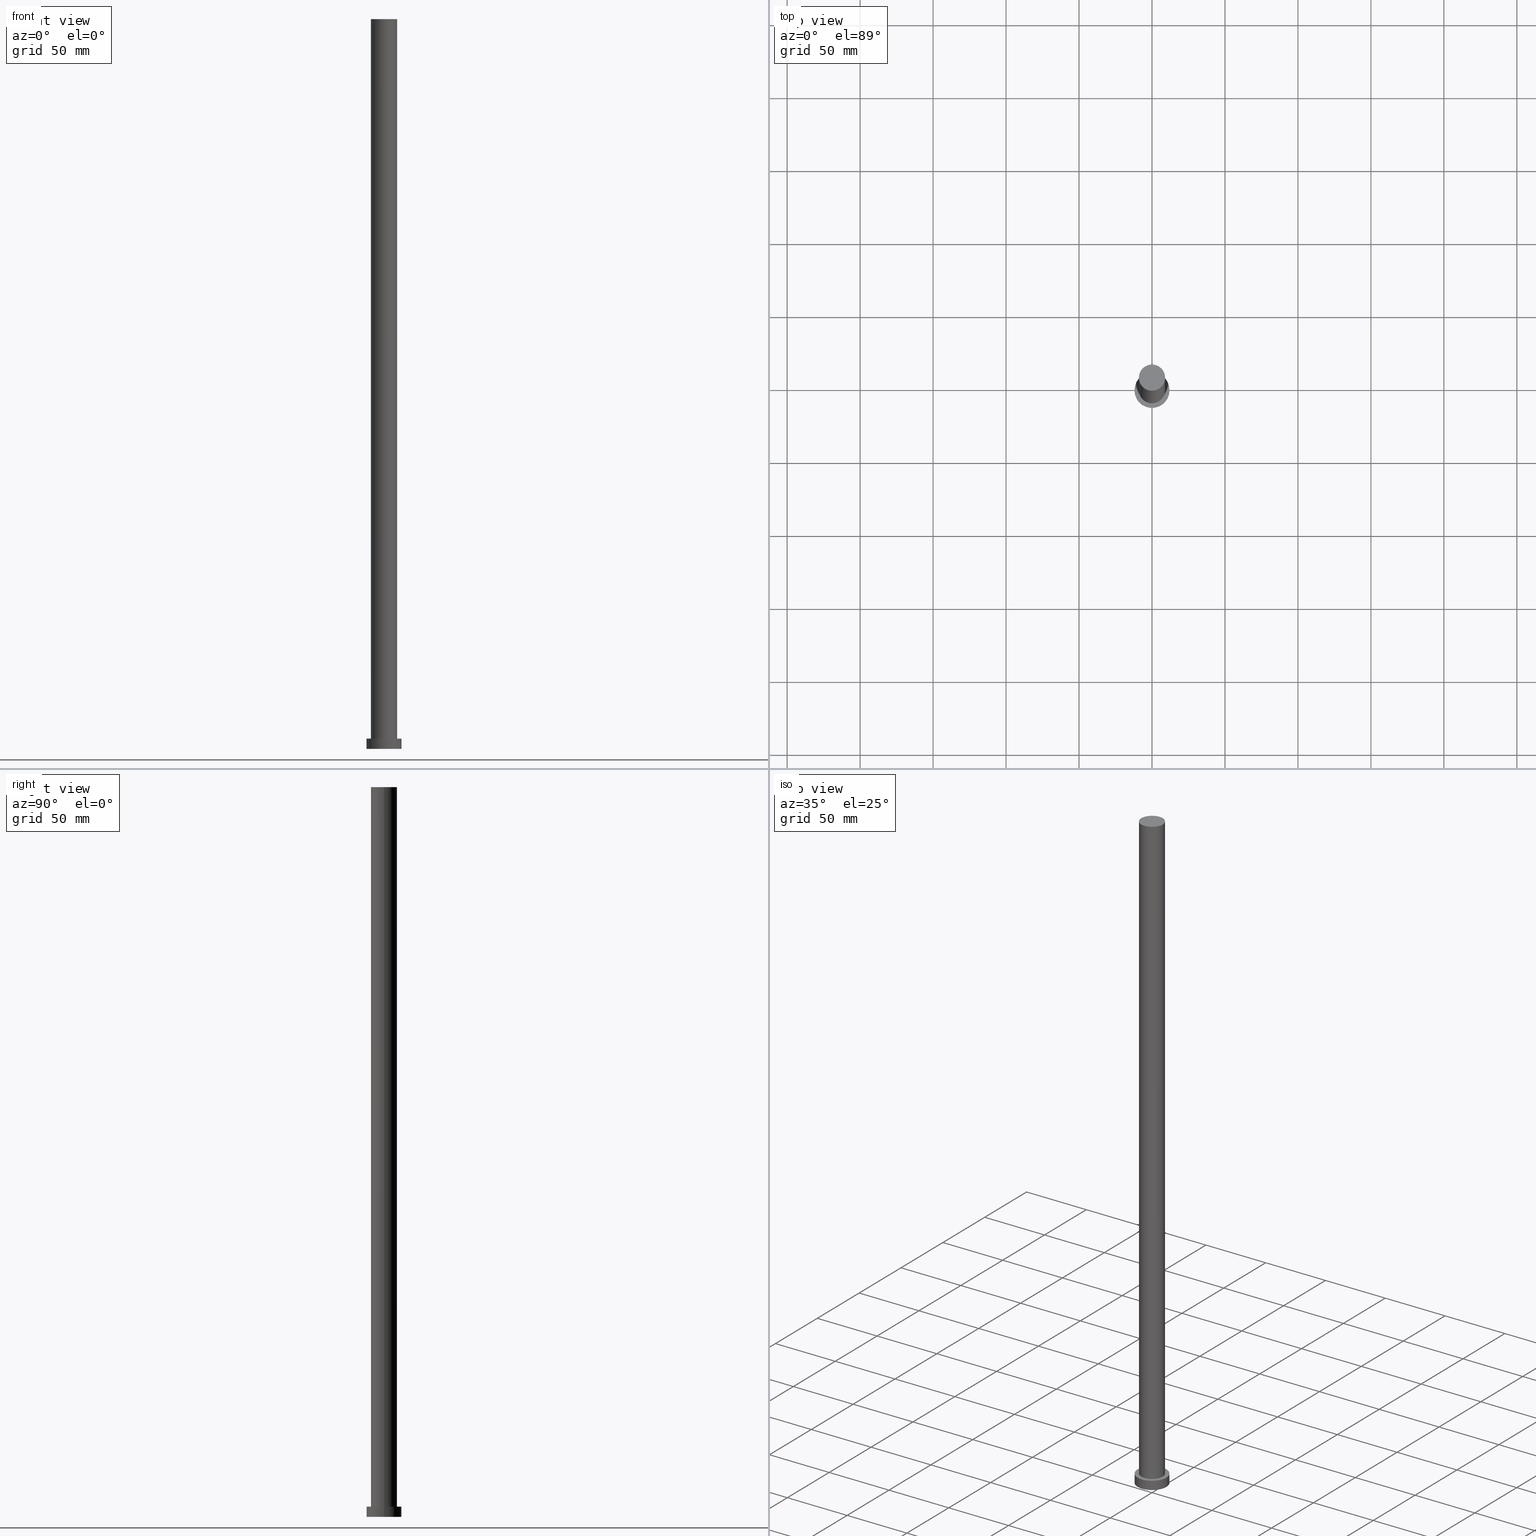
[diagram: canonical four-view strip — front | top / right | iso, engineering-drawing reading convention]
A machine part, canonical four-view strip (front | top / right | iso — engineering-drawing reading convention). The complete STEP part file that produces these views, byte-faithful:
ISO-10303-21;
HEADER;
FILE_DESCRIPTION (( 'STEP AP203' ),
    '1' );
FILE_NAME ('16a3.STEP',
    '2023-02-13T08:45:07',
    ( '' ),
    ( '' ),
    'SwSTEP 2.0',
    'SolidWorks 2019',
    '' );
FILE_SCHEMA (( 'CONFIG_CONTROL_DESIGN' ));
ENDSEC;

DATA;
#1 = DIRECTION ( 'NONE',  ( 1.000000000000000000, 0.000000000000000000, 0.000000000000000000 ) ) ;
#2 = PERSON_AND_ORGANIZATION_ROLE ( 'design_owner' ) ;
#3 = PERSON_AND_ORGANIZATION ( #101, #18 ) ;
#4 = AXIS2_PLACEMENT_3D ( 'NONE', #131, #29, #252 ) ;
#5 = VERTEX_POINT ( 'NONE', #158 ) ;
#6 =( GEOMETRIC_REPRESENTATION_CONTEXT ( 3 ) GLOBAL_UNCERTAINTY_ASSIGNED_CONTEXT ( ( #142 ) ) GLOBAL_UNIT_ASSIGNED_CONTEXT ( ( #20, #102, #136 ) ) REPRESENTATION_CONTEXT ( 'NONE', 'WORKASPACE' ) );
#7 = CC_DESIGN_APPROVAL ( #127, ( #43 ) ) ;
#8 = ORIENTED_EDGE ( 'NONE', *, *, #128, .T. ) ;
#9 = ORIENTED_EDGE ( 'NONE', *, *, #54, .F. ) ;
#10 = CC_DESIGN_APPROVAL ( #162, ( #253 ) ) ;
#11 = CYLINDRICAL_SURFACE ( 'NONE', #110, 12.00000000000000178 ) ;
#12 = EDGE_CURVE ( 'NONE', #64, #225, #224, .T. ) ;
#13 = FACE_OUTER_BOUND ( 'NONE', #164, .T. ) ;
#14 = DIRECTION ( 'NONE',  ( 1.000000000000000000, 0.000000000000000000, 0.000000000000000000 ) ) ;
#15 = DIRECTION ( 'NONE',  ( -0.000000000000000000, -0.000000000000000000, -1.000000000000000000 ) ) ;
#16 = CARTESIAN_POINT ( 'NONE',  ( 0.000000000000000000, 0.000000000000000000, 0.000000000000000000 ) ) ;
#17 = PERSON_AND_ORGANIZATION ( #101, #18 ) ;
#18 = ORGANIZATION ( 'NEUR�EN�', 'NEUR�EN�', '' ) ;
#19 = AXIS2_PLACEMENT_3D ( 'NONE', #242, #59, #196 ) ;
#20 =( LENGTH_UNIT ( ) NAMED_UNIT ( * ) SI_UNIT ( .MILLI., .METRE. ) );
#21 = ADVANCED_FACE ( 'NONE', ( #213 ), #74, .F. ) ;
#22 = CARTESIAN_POINT ( 'NONE',  ( 12.00000000000000178, 1.469576158976824144E-15, 7.000000000000000000 ) ) ;
#23 = CARTESIAN_POINT ( 'NONE',  ( 0.000000000000000000, 0.000000000000000000, 500.0000000000000000 ) ) ;
#24 = VERTEX_POINT ( 'NONE', #236 ) ;
#25 = ORIENTED_EDGE ( 'NONE', *, *, #111, .F. ) ;
#26 = SHAPE_DEFINITION_REPRESENTATION ( #186, #216 ) ;
#27 = PERSON_AND_ORGANIZATION ( #101, #18 ) ;
#28 = ORIENTED_EDGE ( 'NONE', *, *, #152, .F. ) ;
#29 = DIRECTION ( 'NONE',  ( 0.000000000000000000, 0.000000000000000000, 1.000000000000000000 ) ) ;
#30 = VECTOR ( 'NONE', #55, 1000.000000000000000 ) ;
#31 = DIRECTION ( 'NONE',  ( -0.000000000000000000, -0.000000000000000000, -1.000000000000000000 ) ) ;
#32 = ADVANCED_FACE ( 'NONE', ( #91 ), #92, .T. ) ;
#33 = CYLINDRICAL_SURFACE ( 'NONE', #90, 12.00000000000000178 ) ;
#34 = DIRECTION ( 'NONE',  ( -0.000000000000000000, -0.000000000000000000, -1.000000000000000000 ) ) ;
#35 = AXIS2_PLACEMENT_3D ( 'NONE', #214, #211, #167 ) ;
#36 = APPLICATION_PROTOCOL_DEFINITION ( 'international standard', 'config_control_design', 1994, #204 ) ;
#37 = CC_DESIGN_PERSON_AND_ORGANIZATION_ASSIGNMENT ( #103, #222, ( #253 ) ) ;
#38 = APPROVAL_PERSON_ORGANIZATION ( #3, #47, #56 ) ;
#39 = APPROVAL_PERSON_ORGANIZATION ( #137, #127, #87 ) ;
#40 = PERSON_AND_ORGANIZATION ( #101, #18 ) ;
#41 = APPROVAL_STATUS ( 'not_yet_approved' ) ;
#42 = PERSON_AND_ORGANIZATION_ROLE ( 'creator' ) ;
#43 = SECURITY_CLASSIFICATION ( '', '', #67 ) ;
#44 = EDGE_LOOP ( 'NONE', ( #247, #88 ) ) ;
#45 = PRODUCT_DEFINITION ( 'NEZN�M�', '', #253, #251 ) ;
#46 = DIRECTION ( 'NONE',  ( 0.000000000000000000, 0.000000000000000000, 1.000000000000000000 ) ) ;
#47 = APPROVAL ( #41, 'NEUR�EN�' ) ;
#48 = EDGE_CURVE ( 'NONE', #225, #64, #238, .T. ) ;
#49 = FACE_OUTER_BOUND ( 'NONE', #61, .T. ) ;
#50 = APPLICATION_CONTEXT ( 'configuration controlled 3d designs of mechanical parts and assemblies' ) ;
#51 = DIRECTION ( 'NONE',  ( 0.000000000000000000, 0.000000000000000000, 1.000000000000000000 ) ) ;
#52 = DIRECTION ( 'NONE',  ( 0.000000000000000000, 0.000000000000000000, 1.000000000000000000 ) ) ;
#53 = DIRECTION ( 'NONE',  ( 1.000000000000000000, 0.000000000000000000, 0.000000000000000000 ) ) ;
#54 = EDGE_CURVE ( 'NONE', #24, #202, #180, .T. ) ;
#55 = DIRECTION ( 'NONE',  ( -0.000000000000000000, -0.000000000000000000, -1.000000000000000000 ) ) ;
#56 = APPROVAL_ROLE ( '' ) ;
#57 = APPROVAL_PERSON_ORGANIZATION ( #239, #162, #154 ) ;
#58 = CALENDAR_DATE ( 2023, 13, 2 ) ;
#59 = DIRECTION ( 'NONE',  ( 0.000000000000000000, 0.000000000000000000, 1.000000000000000000 ) ) ;
#60 = APPROVAL_DATE_TIME ( #85, #162 ) ;
#61 = EDGE_LOOP ( 'NONE', ( #25, #9, #141, #245 ) ) ;
#62 = CC_DESIGN_PERSON_AND_ORGANIZATION_ASSIGNMENT ( #63, #140, ( #253 ) ) ;
#63 = PERSON_AND_ORGANIZATION ( #101, #18 ) ;
#64 = VERTEX_POINT ( 'NONE', #129 ) ;
#65 = DATE_TIME_ROLE ( 'classification_date' ) ;
#66 = ORIENTED_EDGE ( 'NONE', *, *, #229, .F. ) ;
#67 = SECURITY_CLASSIFICATION_LEVEL ( 'unclassified' ) ;
#68 = CARTESIAN_POINT ( 'NONE',  ( 0.000000000000000000, 0.000000000000000000, 7.000000000000000000 ) ) ;
#69 = LOCAL_TIME ( 9, 45, 7.000000000000000000, #240 ) ;
#70 = CARTESIAN_POINT ( 'NONE',  ( 0.000000000000000000, 0.000000000000000000, 7.000000000000000000 ) ) ;
#71 = CARTESIAN_POINT ( 'NONE',  ( 0.000000000000000000, 0.000000000000000000, 7.000000000000000000 ) ) ;
#72 = CC_DESIGN_APPROVAL ( #47, ( #45 ) ) ;
#73 = ORIENTED_EDGE ( 'NONE', *, *, #178, .F. ) ;
#74 = PLANE ( 'NONE',  #241 ) ;
#75 = AXIS2_PLACEMENT_3D ( 'NONE', #172, #170, #1 ) ;
#76 = PLANE ( 'NONE',  #159 ) ;
#77 = MECHANICAL_CONTEXT ( 'NONE', #50, 'mechanical' ) ;
#78 = APPROVAL_STATUS ( 'not_yet_approved' ) ;
#79 = LOCAL_TIME ( 9, 45, 7.000000000000000000, #181 ) ;
#80 = CARTESIAN_POINT ( 'NONE',  ( -9.000000000000001776, 0.000000000000000000, 500.0000000000000000 ) ) ;
#81 = PRODUCT_RELATED_PRODUCT_CATEGORY ( 'detail', '', ( #203 ) ) ;
#82 = PERSON_AND_ORGANIZATION_ROLE ( 'classification_officer' ) ;
#83 = ORIENTED_EDGE ( 'NONE', *, *, #223, .T. ) ;
#84 = CC_DESIGN_PERSON_AND_ORGANIZATION_ASSIGNMENT ( #17, #42, ( #45 ) ) ;
#85 = DATE_AND_TIME ( #58, #69 ) ;
#86 = ORIENTED_EDGE ( 'NONE', *, *, #157, .T. ) ;
#87 = APPROVAL_ROLE ( '' ) ;
#88 = ORIENTED_EDGE ( 'NONE', *, *, #128, .F. ) ;
#89 = AXIS2_PLACEMENT_3D ( 'NONE', #70, #194, #144 ) ;
#90 = AXIS2_PLACEMENT_3D ( 'NONE', #190, #96, #147 ) ;
#91 = FACE_OUTER_BOUND ( 'NONE', #208, .T. ) ;
#92 = PLANE ( 'NONE',  #4 ) ;
#93 = ORIENTED_EDGE ( 'NONE', *, *, #152, .T. ) ;
#94 = CARTESIAN_POINT ( 'NONE',  ( 0.000000000000000000, 0.000000000000000000, 7.000000000000000000 ) ) ;
#95 = FACE_OUTER_BOUND ( 'NONE', #165, .T. ) ;
#96 = DIRECTION ( 'NONE',  ( -0.000000000000000000, -0.000000000000000000, -1.000000000000000000 ) ) ;
#97 = ADVANCED_FACE ( 'NONE', ( #113 ), #33, .T. ) ;
#98 = CARTESIAN_POINT ( 'NONE',  ( -9.000000000000001776, 0.000000000000000000, 7.000000000000000000 ) ) ;
#99 = CIRCLE ( 'NONE', #197, 12.00000000000000178 ) ;
#100 = CC_DESIGN_DATE_AND_TIME_ASSIGNMENT ( #226, #65, ( #43 ) ) ;
#101 = PERSON ( 'NEUR�EN�', 'NEUR�EN�', 'NEUR�EN�', ('NEUR�EN�'), ('NEUR�EN�'), ('NEUR�EN�') ) ;
#102 =( NAMED_UNIT ( * ) PLANE_ANGLE_UNIT ( ) SI_UNIT ( $, .RADIAN. ) );
#103 = PERSON_AND_ORGANIZATION ( #101, #18 ) ;
#104 = ORIENTED_EDGE ( 'NONE', *, *, #54, .T. ) ;
#105 = CC_DESIGN_DATE_AND_TIME_ASSIGNMENT ( #220, #150, ( #45 ) ) ;
#106 = ORIENTED_EDGE ( 'NONE', *, *, #223, .F. ) ;
#107 = LOCAL_TIME ( 9, 45, 7.000000000000000000, #173 ) ;
#108 = COORDINATED_UNIVERSAL_TIME_OFFSET ( 1, 0, .AHEAD. ) ;
#109 = CLOSED_SHELL ( 'NONE', ( #174, #124, #97, #163, #21, #206, #32 ) ) ;
#110 = AXIS2_PLACEMENT_3D ( 'NONE', #94, #234, #114 ) ;
#111 = EDGE_CURVE ( 'NONE', #202, #64, #191, .T. ) ;
#112 = ORIENTED_EDGE ( 'NONE', *, *, #178, .T. ) ;
#113 = FACE_OUTER_BOUND ( 'NONE', #134, .T. ) ;
#114 = DIRECTION ( 'NONE',  ( -1.000000000000000000, 0.000000000000000000, 0.000000000000000000 ) ) ;
#115 = EDGE_CURVE ( 'NONE', #5, #143, #125, .T. ) ;
#116 = CARTESIAN_POINT ( 'NONE',  ( 9.000000000000001776, 1.102182119232617911E-15, 500.0000000000000000 ) ) ;
#117 = LINE ( 'NONE', #193, #151 ) ;
#118 = DIRECTION ( 'NONE',  ( 1.000000000000000000, 0.000000000000000000, 0.000000000000000000 ) ) ;
#119 = DIRECTION ( 'NONE',  ( -1.000000000000000000, 0.000000000000000000, 0.000000000000000000 ) ) ;
#120 = CYLINDRICAL_SURFACE ( 'NONE', #138, 9.000000000000001776 ) ;
#121 = CC_DESIGN_PERSON_AND_ORGANIZATION_ASSIGNMENT ( #27, #82, ( #43 ) ) ;
#122 = CARTESIAN_POINT ( 'NONE',  ( 0.000000000000000000, 0.000000000000000000, 500.0000000000000000 ) ) ;
#123 = APPROVAL_STATUS ( 'not_yet_approved' ) ;
#124 = ADVANCED_FACE ( 'NONE', ( #95 ), #11, .T. ) ;
#125 = CIRCLE ( 'NONE', #139, 12.00000000000000178 ) ;
#126 = EDGE_LOOP ( 'NONE', ( #187, #169 ) ) ;
#127 = APPROVAL ( #123, 'NEUR�EN�' ) ;
#128 = EDGE_CURVE ( 'NONE', #143, #5, #212, .T. ) ;
#129 = CARTESIAN_POINT ( 'NONE',  ( 9.000000000000001776, 1.102182119232617911E-15, 7.000000000000000000 ) ) ;
#130 = DIRECTION ( 'NONE',  ( 0.000000000000000000, 0.000000000000000000, 1.000000000000000000 ) ) ;
#131 = CARTESIAN_POINT ( 'NONE',  ( 0.000000000000000000, 0.000000000000000000, 500.0000000000000000 ) ) ;
#132 = CIRCLE ( 'NONE', #89, 12.00000000000000178 ) ;
#133 = COORDINATED_UNIVERSAL_TIME_OFFSET ( 1, 0, .AHEAD. ) ;
#134 = EDGE_LOOP ( 'NONE', ( #66, #73, #93, #243 ) ) ;
#135 = CALENDAR_DATE ( 2023, 13, 2 ) ;
#136 =( NAMED_UNIT ( * ) SI_UNIT ( $, .STERADIAN. ) SOLID_ANGLE_UNIT ( ) );
#137 = PERSON_AND_ORGANIZATION ( #101, #18 ) ;
#138 = AXIS2_PLACEMENT_3D ( 'NONE', #23, #176, #119 ) ;
#139 = AXIS2_PLACEMENT_3D ( 'NONE', #149, #51, #14 ) ;
#140 = PERSON_AND_ORGANIZATION_ROLE ( 'design_supplier' ) ;
#141 = ORIENTED_EDGE ( 'NONE', *, *, #250, .T. ) ;
#142 = UNCERTAINTY_MEASURE_WITH_UNIT (LENGTH_MEASURE( 1.000000000000000082E-05 ), #20, 'distance_accuracy_value', 'NONE');
#143 = VERTEX_POINT ( 'NONE', #215 ) ;
#144 = DIRECTION ( 'NONE',  ( 1.000000000000000000, 0.000000000000000000, 0.000000000000000000 ) ) ;
#145 = AXIS2_PLACEMENT_3D ( 'NONE', #148, #34, #189 ) ;
#146 = FACE_OUTER_BOUND ( 'NONE', #161, .T. ) ;
#147 = DIRECTION ( 'NONE',  ( -1.000000000000000000, 0.000000000000000000, 0.000000000000000000 ) ) ;
#148 = CARTESIAN_POINT ( 'NONE',  ( 0.000000000000000000, 0.000000000000000000, 500.0000000000000000 ) ) ;
#149 = CARTESIAN_POINT ( 'NONE',  ( 0.000000000000000000, 0.000000000000000000, 0.000000000000000000 ) ) ;
#150 = DATE_TIME_ROLE ( 'creation_date' ) ;
#151 = VECTOR ( 'NONE', #15, 1000.000000000000000 ) ;
#152 = EDGE_CURVE ( 'NONE', #249, #5, #117, .T. ) ;
#153 = DIRECTION ( 'NONE',  ( 1.000000000000000000, 0.000000000000000000, 0.000000000000000000 ) ) ;
#154 = APPROVAL_ROLE ( '' ) ;
#155 = AXIS2_PLACEMENT_3D ( 'NONE', #122, #200, #153 ) ;
#156 = CARTESIAN_POINT ( 'NONE',  ( 12.00000000000000178, 1.469576158976824144E-15, 7.000000000000000000 ) ) ;
#157 = EDGE_CURVE ( 'NONE', #228, #249, #99, .T. ) ;
#158 = CARTESIAN_POINT ( 'NONE',  ( -12.00000000000000178, 0.000000000000000000, 0.000000000000000000 ) ) ;
#159 = AXIS2_PLACEMENT_3D ( 'NONE', #71, #130, #248 ) ;
#160 = DATE_AND_TIME ( #244, #79 ) ;
#161 = EDGE_LOOP ( 'NONE', ( #106, #182, #166, #205 ) ) ;
#162 = APPROVAL ( #78, 'NEUR�EN�' ) ;
#163 = ADVANCED_FACE ( 'NONE', ( #255, #13 ), #76, .T. ) ;
#164 = EDGE_LOOP ( 'NONE', ( #112, #86 ) ) ;
#165 = EDGE_LOOP ( 'NONE', ( #230, #183, #8, #28 ) ) ;
#166 = ORIENTED_EDGE ( 'NONE', *, *, #12, .T. ) ;
#167 = DIRECTION ( 'NONE',  ( 1.000000000000000000, 0.000000000000000000, 0.000000000000000000 ) ) ;
#168 = DIRECTION ( 'NONE',  ( 1.000000000000000000, 0.000000000000000000, -0.000000000000000000 ) ) ;
#169 = ORIENTED_EDGE ( 'NONE', *, *, #12, .F. ) ;
#170 = DIRECTION ( 'NONE',  ( 0.000000000000000000, 0.000000000000000000, 1.000000000000000000 ) ) ;
#171 = DIRECTION ( 'NONE',  ( 0.000000000000000000, 0.000000000000000000, 1.000000000000000000 ) ) ;
#172 = CARTESIAN_POINT ( 'NONE',  ( 0.000000000000000000, 0.000000000000000000, 7.000000000000000000 ) ) ;
#173 = COORDINATED_UNIVERSAL_TIME_OFFSET ( 1, 0, .AHEAD. ) ;
#174 = ADVANCED_FACE ( 'NONE', ( #146 ), #233, .T. ) ;
#175 = AXIS2_PLACEMENT_3D ( 'NONE', #16, #52, #118 ) ;
#176 = DIRECTION ( 'NONE',  ( -0.000000000000000000, -0.000000000000000000, -1.000000000000000000 ) ) ;
#177 = LINE ( 'NONE', #156, #30 ) ;
#178 = EDGE_CURVE ( 'NONE', #249, #228, #132, .T. ) ;
#179 = APPROVAL_DATE_TIME ( #221, #47 ) ;
#180 = CIRCLE ( 'NONE', #35, 9.000000000000001776 ) ;
#181 = COORDINATED_UNIVERSAL_TIME_OFFSET ( 1, 0, .AHEAD. ) ;
#182 = ORIENTED_EDGE ( 'NONE', *, *, #111, .T. ) ;
#183 = ORIENTED_EDGE ( 'NONE', *, *, #229, .T. ) ;
#184 = LOCAL_TIME ( 9, 45, 7.000000000000000000, #133 ) ;
#185 = AXIS2_PLACEMENT_3D ( 'NONE', #68, #46, #209 ) ;
#186 = PRODUCT_DEFINITION_SHAPE ( 'NONE', 'NONE',  #45 ) ;
#187 = ORIENTED_EDGE ( 'NONE', *, *, #48, .F. ) ;
#188 = VECTOR ( 'NONE', #218, 1000.000000000000000 ) ;
#189 = DIRECTION ( 'NONE',  ( -1.000000000000000000, 0.000000000000000000, 0.000000000000000000 ) ) ;
#190 = CARTESIAN_POINT ( 'NONE',  ( 0.000000000000000000, 0.000000000000000000, 7.000000000000000000 ) ) ;
#191 = LINE ( 'NONE', #116, #201 ) ;
#192 = CC_DESIGN_PERSON_AND_ORGANIZATION_ASSIGNMENT ( #40, #2, ( #203 ) ) ;
#193 = CARTESIAN_POINT ( 'NONE',  ( -12.00000000000000178, 0.000000000000000000, 7.000000000000000000 ) ) ;
#194 = DIRECTION ( 'NONE',  ( 0.000000000000000000, 0.000000000000000000, 1.000000000000000000 ) ) ;
#195 = APPLICATION_PROTOCOL_DEFINITION ( 'international standard', 'config_control_design', 1994, #50 ) ;
#196 = DIRECTION ( 'NONE',  ( 1.000000000000000000, 0.000000000000000000, 0.000000000000000000 ) ) ;
#197 = AXIS2_PLACEMENT_3D ( 'NONE', #237, #171, #53 ) ;
#198 = LOCAL_TIME ( 9, 45, 7.000000000000000000, #108 ) ;
#199 = LINE ( 'NONE', #80, #188 ) ;
#200 = DIRECTION ( 'NONE',  ( 0.000000000000000000, 0.000000000000000000, 1.000000000000000000 ) ) ;
#201 = VECTOR ( 'NONE', #31, 1000.000000000000000 ) ;
#202 = VERTEX_POINT ( 'NONE', #231 ) ;
#203 = PRODUCT ( '16a3', '16a3', '', ( #77 ) ) ;
#204 = APPLICATION_CONTEXT ( 'configuration controlled 3d designs of mechanical parts and assemblies' ) ;
#205 = ORIENTED_EDGE ( 'NONE', *, *, #250, .F. ) ;
#206 = ADVANCED_FACE ( 'NONE', ( #49 ), #120, .T. ) ;
#207 = APPROVAL_DATE_TIME ( #160, #127 ) ;
#208 = EDGE_LOOP ( 'NONE', ( #104, #83 ) ) ;
#209 = DIRECTION ( 'NONE',  ( 1.000000000000000000, 0.000000000000000000, 0.000000000000000000 ) ) ;
#210 = DIRECTION ( 'NONE',  ( 0.000000000000000000, 0.000000000000000000, 1.000000000000000000 ) ) ;
#211 = DIRECTION ( 'NONE',  ( 0.000000000000000000, 0.000000000000000000, 1.000000000000000000 ) ) ;
#212 = CIRCLE ( 'NONE', #175, 12.00000000000000178 ) ;
#213 = FACE_OUTER_BOUND ( 'NONE', #44, .T. ) ;
#214 = CARTESIAN_POINT ( 'NONE',  ( 0.000000000000000000, 0.000000000000000000, 500.0000000000000000 ) ) ;
#215 = CARTESIAN_POINT ( 'NONE',  ( 12.00000000000000178, 1.469576158976824144E-15, 0.000000000000000000 ) ) ;
#216 = ADVANCED_BREP_SHAPE_REPRESENTATION ( '16a3', ( #235, #19 ), #6 ) ;
#217 = CARTESIAN_POINT ( 'NONE',  ( -12.00000000000000178, 0.000000000000000000, 7.000000000000000000 ) ) ;
#218 = DIRECTION ( 'NONE',  ( -0.000000000000000000, -0.000000000000000000, -1.000000000000000000 ) ) ;
#219 = CALENDAR_DATE ( 2023, 13, 2 ) ;
#220 = DATE_AND_TIME ( #135, #107 ) ;
#221 = DATE_AND_TIME ( #219, #184 ) ;
#222 = PERSON_AND_ORGANIZATION_ROLE ( 'creator' ) ;
#223 = EDGE_CURVE ( 'NONE', #202, #24, #232, .T. ) ;
#224 = CIRCLE ( 'NONE', #185, 9.000000000000001776 ) ;
#225 = VERTEX_POINT ( 'NONE', #98 ) ;
#226 = DATE_AND_TIME ( #227, #198 ) ;
#227 = CALENDAR_DATE ( 2023, 13, 2 ) ;
#228 = VERTEX_POINT ( 'NONE', #22 ) ;
#229 = EDGE_CURVE ( 'NONE', #228, #143, #177, .T. ) ;
#230 = ORIENTED_EDGE ( 'NONE', *, *, #157, .F. ) ;
#231 = CARTESIAN_POINT ( 'NONE',  ( 9.000000000000001776, 1.102182119232617911E-15, 500.0000000000000000 ) ) ;
#232 = CIRCLE ( 'NONE', #155, 9.000000000000001776 ) ;
#233 = CYLINDRICAL_SURFACE ( 'NONE', #145, 9.000000000000001776 ) ;
#234 = DIRECTION ( 'NONE',  ( -0.000000000000000000, -0.000000000000000000, -1.000000000000000000 ) ) ;
#235 = MANIFOLD_SOLID_BREP ( 'P�idat vysunut�m3', #109 ) ;
#236 = CARTESIAN_POINT ( 'NONE',  ( -9.000000000000001776, 0.000000000000000000, 500.0000000000000000 ) ) ;
#237 = CARTESIAN_POINT ( 'NONE',  ( 0.000000000000000000, 0.000000000000000000, 7.000000000000000000 ) ) ;
#238 = CIRCLE ( 'NONE', #75, 9.000000000000001776 ) ;
#239 = PERSON_AND_ORGANIZATION ( #101, #18 ) ;
#240 = COORDINATED_UNIVERSAL_TIME_OFFSET ( 1, 0, .AHEAD. ) ;
#241 = AXIS2_PLACEMENT_3D ( 'NONE', #254, #210, #168 ) ;
#242 = CARTESIAN_POINT ( 'NONE',  ( 0.000000000000000000, 0.000000000000000000, 0.000000000000000000 ) ) ;
#243 = ORIENTED_EDGE ( 'NONE', *, *, #115, .T. ) ;
#244 = CALENDAR_DATE ( 2023, 13, 2 ) ;
#245 = ORIENTED_EDGE ( 'NONE', *, *, #48, .T. ) ;
#246 = CC_DESIGN_SECURITY_CLASSIFICATION ( #43, ( #253 ) ) ;
#247 = ORIENTED_EDGE ( 'NONE', *, *, #115, .F. ) ;
#248 = DIRECTION ( 'NONE',  ( 1.000000000000000000, 0.000000000000000000, -0.000000000000000000 ) ) ;
#249 = VERTEX_POINT ( 'NONE', #217 ) ;
#250 = EDGE_CURVE ( 'NONE', #24, #225, #199, .T. ) ;
#251 = DESIGN_CONTEXT ( 'detailed design', #204, 'design' ) ;
#252 = DIRECTION ( 'NONE',  ( 1.000000000000000000, 0.000000000000000000, -0.000000000000000000 ) ) ;
#253 = PRODUCT_DEFINITION_FORMATION_WITH_SPECIFIED_SOURCE ( 'LIBOVOLN�', '', #203, .NOT_KNOWN. ) ;
#254 = CARTESIAN_POINT ( 'NONE',  ( 0.000000000000000000, 0.000000000000000000, 0.000000000000000000 ) ) ;
#255 = FACE_BOUND ( 'NONE', #126, .T. ) ;
ENDSEC;
END-ISO-10303-21;
